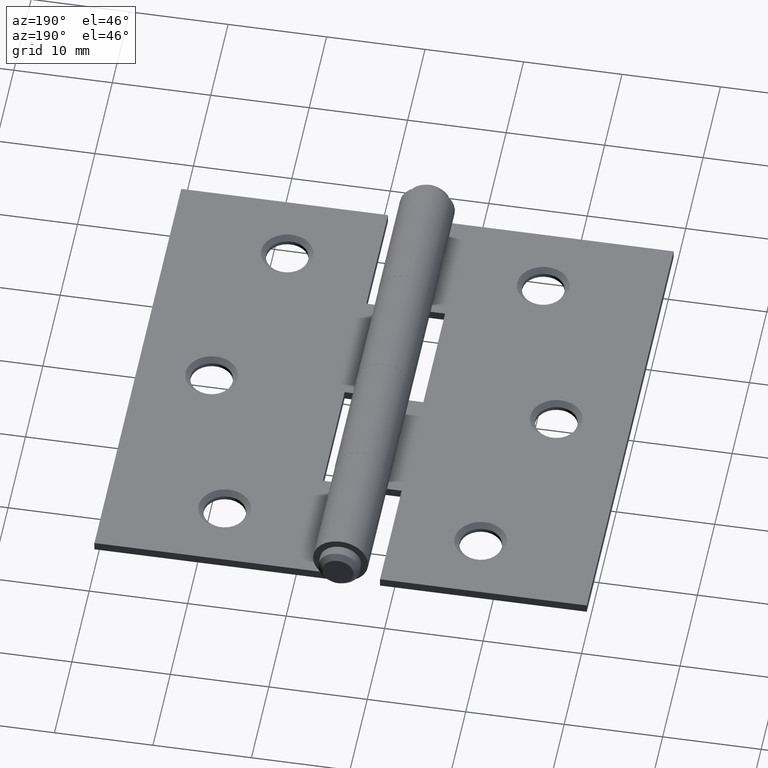
[diagram: clean part render]
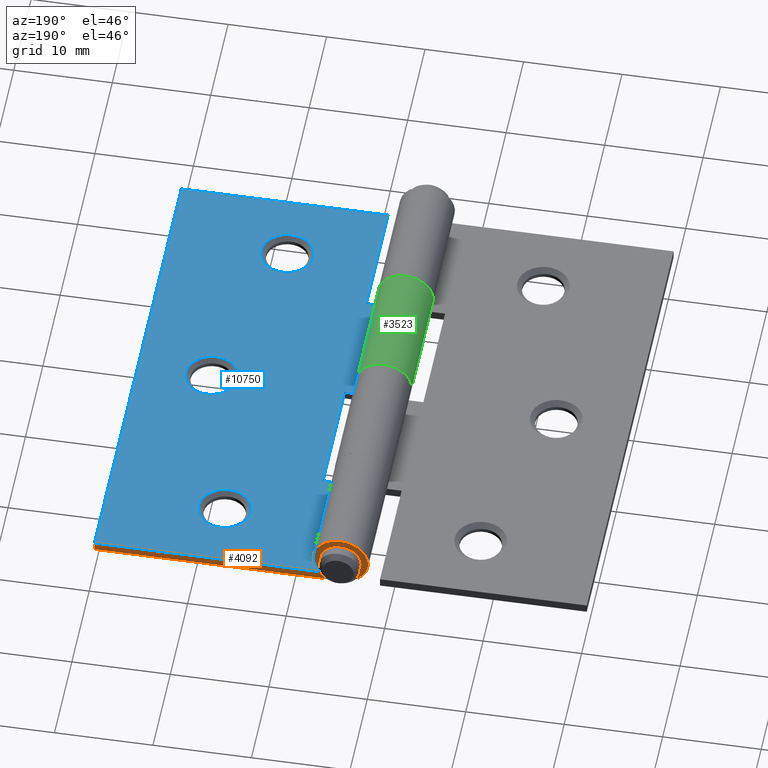
[diagram: same view with three faces highlighted in distinct colors, each labeled with its STEP entity id]
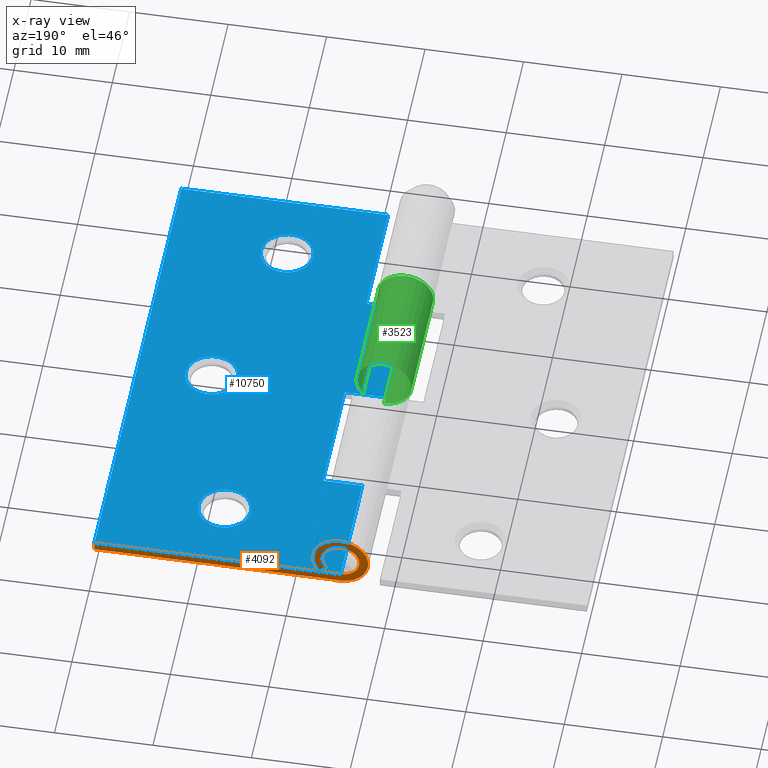
[diagram: x-ray of the same camera — body ghosted, the three highlighted faces saturated]
A machine part, auxiliary view with three faces highlighted in distinct colors.
The next image is the same camera in x-ray (body ghosted, the three faces saturated) — at least one of them is partly hidden behind the body in this view.
Their STEP definitions:

[orange] entity #4092 — the highlighted planar face has unit normal (0, 1, 0).
#344 = LINE ( 'NONE', #5999, #9733 ) ;
#432 = DIRECTION ( 'NONE',  ( 0.000000000000000000, -0.000000000000000000, -1.000000000000000000 ) ) ;
#448 = DIRECTION ( 'NONE',  ( 0.000000000000000000, 0.000000000000000000, -1.000000000000000000 ) ) ;
#461 = ORIENTED_EDGE ( 'NONE', *, *, #9180, .F. ) ;
#495 = LINE ( 'NONE', #9007, #7043 ) ;
#497 = PLANE ( 'NONE',  #11071 ) ;
#560 = EDGE_LOOP ( 'NONE', ( #461, #5979, #1026, #10837, #6148, #6451 ) ) ;
#574 = AXIS2_PLACEMENT_3D ( 'NONE', #8064, #4743, #448 ) ;
#853 = CARTESIAN_POINT ( 'NONE',  ( -2.800000000000000266, -25.00000000000000000, 0.9000000000000001332 ) ) ;
#1026 = ORIENTED_EDGE ( 'NONE', *, *, #6200, .F. ) ;
#1456 = FACE_OUTER_BOUND ( 'NONE', #560, .T. ) ;
#2128 = DIRECTION ( 'NONE',  ( 0.000000000000000000, -1.000000000000000000, 0.000000000000000000 ) ) ;
#2196 = LINE ( 'NONE', #5825, #8778 ) ;
#2266 = VECTOR ( 'NONE', #8711, 1000.000000000000000 ) ;
#2293 = CARTESIAN_POINT ( 'NONE',  ( -27.79999999999999716, -25.00000000000000000, 0.9000000000000029088 ) ) ;
#2703 = VERTEX_POINT ( 'NONE', #2293 ) ;
#3034 = CARTESIAN_POINT ( 'NONE',  ( -27.79999999999999716, -25.00000000000000000, 3.144186300207962859E-15 ) ) ;
#3346 = CARTESIAN_POINT ( 'NONE',  ( -2.800000000000000266, -25.00000000000000000, 0.000000000000000000 ) ) ;
#3571 = CARTESIAN_POINT ( 'NONE',  ( -2.799999999999999822, -25.00000000000000000, 2.800000000000000266 ) ) ;
#3646 = EDGE_CURVE ( 'NONE', #2703, #5708, #8583, .T. ) ;
#4092 = ADVANCED_FACE ( 'NONE', ( #1456 ), #497, .T. ) ;
#4103 = CIRCLE ( 'NONE', #5992, 1.899999999999999689 ) ;
#4421 = DIRECTION ( 'NONE',  ( 0.000000000000000000, 0.000000000000000000, -1.000000000000000000 ) ) ;
#4730 = DIRECTION ( 'NONE',  ( -0.000000000000000000, -0.000000000000000000, 1.000000000000000000 ) ) ;
#4743 = DIRECTION ( 'NONE',  ( 0.000000000000000000, 1.000000000000000000, -0.000000000000000000 ) ) ;
#4995 = CIRCLE ( 'NONE', #574, 2.799999999999999378 ) ;
#5708 = VERTEX_POINT ( 'NONE', #7821 ) ;
#5719 = VERTEX_POINT ( 'NONE', #8357 ) ;
#5825 = CARTESIAN_POINT ( 'NONE',  ( -4.944761058952719779, -25.00000000000000000, 0.9999999999999997780 ) ) ;
#5979 = ORIENTED_EDGE ( 'NONE', *, *, #7953, .F. ) ;
#5992 = AXIS2_PLACEMENT_3D ( 'NONE', #3571, #8832, #4421 ) ;
#5999 = CARTESIAN_POINT ( 'NONE',  ( -2.800000000000000266, -25.00000000000000000, 0.000000000000000000 ) ) ;
#6148 = ORIENTED_EDGE ( 'NONE', *, *, #6606, .F. ) ;
#6200 = EDGE_CURVE ( 'NONE', #5708, #8837, #4103, .T. ) ;
#6451 = ORIENTED_EDGE ( 'NONE', *, *, #8069, .F. ) ;
#6606 = EDGE_CURVE ( 'NONE', #9768, #2703, #495, .T. ) ;
#7043 = VECTOR ( 'NONE', #4730, 1000.000000000000000 ) ;
#7821 = CARTESIAN_POINT ( 'NONE',  ( -2.800000000000000266, -25.00000000000000000, 0.9000000000000001332 ) ) ;
#7953 = EDGE_CURVE ( 'NONE', #8837, #5719, #2196, .T. ) ;
#8064 = CARTESIAN_POINT ( 'NONE',  ( -2.799999999999999822, -25.00000000000000000, 2.800000000000000266 ) ) ;
#8069 = EDGE_CURVE ( 'NONE', #8144, #9768, #344, .T. ) ;
#8144 = VERTEX_POINT ( 'NONE', #3346 ) ;
#8260 = CARTESIAN_POINT ( 'NONE',  ( -4.255373575717917412, -25.00000000000000000, 1.578571428571428958 ) ) ;
#8357 = CARTESIAN_POINT ( 'NONE',  ( -4.944761058952719779, -25.00000000000000000, 0.9999999999999997780 ) ) ;
#8569 = DIRECTION ( 'NONE',  ( -1.000000000000000000, 0.000000000000000000, 1.257674520083185390E-16 ) ) ;
#8583 = LINE ( 'NONE', #853, #2266 ) ;
#8711 = DIRECTION ( 'NONE',  ( 1.000000000000000000, -0.000000000000000000, -1.127570259384924858E-16 ) ) ;
#8778 = VECTOR ( 'NONE', #10992, 1000.000000000000000 ) ;
#8832 = DIRECTION ( 'NONE',  ( -0.000000000000000000, -1.000000000000000000, 0.000000000000000000 ) ) ;
#8837 = VERTEX_POINT ( 'NONE', #8260 ) ;
#9007 = CARTESIAN_POINT ( 'NONE',  ( -27.79999999999999716, -25.00000000000000000, 0.9000000000000029088 ) ) ;
#9180 = EDGE_CURVE ( 'NONE', #5719, #8144, #4995, .T. ) ;
#9733 = VECTOR ( 'NONE', #8569, 1000.000000000000000 ) ;
#9768 = VERTEX_POINT ( 'NONE', #3034 ) ;
#10837 = ORIENTED_EDGE ( 'NONE', *, *, #3646, .F. ) ;
#10856 = CARTESIAN_POINT ( 'NONE',  ( -2.799999999999999822, -25.00000000000000000, 2.800000000000000266 ) ) ;
#10992 = DIRECTION ( 'NONE',  ( -0.7659860924831140006, -0.000000000000000000, -0.6428571428571439039 ) ) ;
#11071 = AXIS2_PLACEMENT_3D ( 'NONE', #10856, #2128, #432 ) ;

[blue] entity #10750 — the highlighted planar face has unit normal (-0, -0, -1).
#396 = ORIENTED_EDGE ( 'NONE', *, *, #10828, .F. ) ;
#431 = EDGE_CURVE ( 'NONE', #9718, #3584, #774, .T. ) ;
#582 = FACE_BOUND ( 'NONE', #2800, .T. ) ;
#746 = VECTOR ( 'NONE', #10382, 1000.000000000000000 ) ;
#772 = VECTOR ( 'NONE', #10529, 1000.000000000000000 ) ;
#774 = LINE ( 'NONE', #2490, #10178 ) ;
#793 = ORIENTED_EDGE ( 'NONE', *, *, #3776, .T. ) ;
#853 = CARTESIAN_POINT ( 'NONE',  ( -2.800000000000000266, -25.00000000000000000, 0.9000000000000001332 ) ) ;
#938 = DIRECTION ( 'NONE',  ( -1.127570259384924858E-16, 0.000000000000000000, -1.000000000000000000 ) ) ;
#1065 = EDGE_CURVE ( 'NONE', #8774, #3584, #8665, .T. ) ;
#1299 = LINE ( 'NONE', #4362, #1833 ) ;
#1351 = AXIS2_PLACEMENT_3D ( 'NONE', #4487, #7091, #7946 ) ;
#1362 = VECTOR ( 'NONE', #2585, 1000.000000000000000 ) ;
#1666 = CIRCLE ( 'NONE', #2052, 2.650000000000034106 ) ;
#1752 = CARTESIAN_POINT ( 'NONE',  ( -2.800000000000000266, 25.00000000000000000, 0.9000000000000001332 ) ) ;
#1782 = EDGE_LOOP ( 'NONE', ( #3689 ) ) ;
#1833 = VECTOR ( 'NONE', #10412, 1000.000000000000000 ) ;
#2052 = AXIS2_PLACEMENT_3D ( 'NONE', #3440, #9361, #5047 ) ;
#2266 = VECTOR ( 'NONE', #8711, 1000.000000000000000 ) ;
#2293 = CARTESIAN_POINT ( 'NONE',  ( -27.79999999999999716, -25.00000000000000000, 0.9000000000000029088 ) ) ;
#2433 = EDGE_CURVE ( 'NONE', #5642, #5642, #9680, .T. ) ;
#2450 = FACE_BOUND ( 'NONE', #6925, .T. ) ;
#2490 = CARTESIAN_POINT ( 'NONE',  ( -6.799999999999995381, 25.00000000000000000, 0.9000000000000004663 ) ) ;
#2585 = DIRECTION ( 'NONE',  ( -0.000000000000000000, -1.000000000000000000, -0.000000000000000000 ) ) ;
#2664 = ORIENTED_EDGE ( 'NONE', *, *, #4989, .T. ) ;
#2680 = ORIENTED_EDGE ( 'NONE', *, *, #8218, .T. ) ;
#2703 = VERTEX_POINT ( 'NONE', #2293 ) ;
#2751 = LINE ( 'NONE', #5503, #772 ) ;
#2800 = EDGE_LOOP ( 'NONE', ( #9933 ) ) ;
#2821 = LINE ( 'NONE', #8545, #1362 ) ;
#2910 = DIRECTION ( 'NONE',  ( 1.000000000000000000, -0.000000000000000000, -1.127570259384924858E-16 ) ) ;
#3133 = CARTESIAN_POINT ( 'NONE',  ( -2.800000000000000266, 12.50000000000000355, 0.9000000000000001332 ) ) ;
#3265 = LINE ( 'NONE', #5081, #746 ) ;
#3433 = PLANE ( 'NONE',  #10857 ) ;
#3440 = CARTESIAN_POINT ( 'NONE',  ( -20.30000000000000071, -3.469446951953614189E-15, 0.9000000000000020206 ) ) ;
#3584 = VERTEX_POINT ( 'NONE', #5859 ) ;
#3634 = DIRECTION ( 'NONE',  ( -1.127570259384924858E-16, 0.000000000000000000, -1.000000000000000000 ) ) ;
#3646 = EDGE_CURVE ( 'NONE', #2703, #5708, #8583, .T. ) ;
#3689 = ORIENTED_EDGE ( 'NONE', *, *, #8476, .T. ) ;
#3748 = VERTEX_POINT ( 'NONE', #6974 ) ;
#3776 = EDGE_CURVE ( 'NONE', #8454, #7445, #7363, .T. ) ;
#3781 = EDGE_LOOP ( 'NONE', ( #6924, #793, #9779, #10946, #8715, #10731, #4390, #8804, #396, #2664 ) ) ;
#3795 = LINE ( 'NONE', #7065, #4448 ) ;
#4161 = CARTESIAN_POINT ( 'NONE',  ( -6.799999999999995381, 3.469446951953614189E-15, 0.9000000000000005773 ) ) ;
#4237 = CARTESIAN_POINT ( 'NONE',  ( -22.95000000000003482, -3.469446951953614189E-15, 0.9000000000000023537 ) ) ;
#4301 = FACE_BOUND ( 'NONE', #1782, .T. ) ;
#4315 = CARTESIAN_POINT ( 'NONE',  ( -2.800000000000000266, 3.469446951953614189E-15, 0.9000000000000005773 ) ) ;
#4362 = CARTESIAN_POINT ( 'NONE',  ( -2.799999999999989608, -12.49999999999999645, 0.9000000000000001332 ) ) ;
#4390 = ORIENTED_EDGE ( 'NONE', *, *, #8632, .T. ) ;
#4448 = VECTOR ( 'NONE', #7140, 1000.000000000000000 ) ;
#4477 = CARTESIAN_POINT ( 'NONE',  ( -15.80000000000000426, 17.99999999999999645, 0.9000000000000015765 ) ) ;
#4487 = CARTESIAN_POINT ( 'NONE',  ( -15.80000000000000071, -18.00000000000000355, 0.9000000000000015765 ) ) ;
#4989 = EDGE_CURVE ( 'NONE', #11116, #9754, #1299, .T. ) ;
#5027 = DIRECTION ( 'NONE',  ( 0.000000000000000000, 1.000000000000000000, 0.000000000000000000 ) ) ;
#5047 = DIRECTION ( 'NONE',  ( -1.000000000000000000, 0.000000000000000000, 1.227398685832630780E-16 ) ) ;
#5081 = CARTESIAN_POINT ( 'NONE',  ( -2.800000000000000266, 25.00000000000000000, 0.9000000000000001332 ) ) ;
#5134 = AXIS2_PLACEMENT_3D ( 'NONE', #4477, #3634, #10603 ) ;
#5503 = CARTESIAN_POINT ( 'NONE',  ( -6.799999999999995381, 25.00000000000000000, 0.9000000000000004663 ) ) ;
#5642 = VERTEX_POINT ( 'NONE', #10251 ) ;
#5708 = VERTEX_POINT ( 'NONE', #7821 ) ;
#5729 = CARTESIAN_POINT ( 'NONE',  ( -6.799999999999995381, 12.50000000000000355, 0.9000000000000005773 ) ) ;
#5828 = CARTESIAN_POINT ( 'NONE',  ( -18.45000000000003837, 17.99999999999999645, 0.9000000000000019096 ) ) ;
#5838 = VECTOR ( 'NONE', #10784, 1000.000000000000000 ) ;
#5859 = CARTESIAN_POINT ( 'NONE',  ( -6.799999999999995381, 25.00000000000000000, 0.9000000000000014655 ) ) ;
#5965 = CARTESIAN_POINT ( 'NONE',  ( -2.800000000000000266, -12.49999999999999645, 0.9000000000000005773 ) ) ;
#6138 = DIRECTION ( 'NONE',  ( 1.000000000000000000, -0.000000000000000000, -1.127570259384924858E-16 ) ) ;
#6194 = FACE_OUTER_BOUND ( 'NONE', #3781, .T. ) ;
#6581 = EDGE_CURVE ( 'NONE', #9754, #8454, #2751, .T. ) ;
#6647 = EDGE_CURVE ( 'NONE', #3748, #9718, #10432, .T. ) ;
#6924 = ORIENTED_EDGE ( 'NONE', *, *, #6581, .T. ) ;
#6925 = EDGE_LOOP ( 'NONE', ( #2680 ) ) ;
#6974 = CARTESIAN_POINT ( 'NONE',  ( -2.799999999999999822, 12.50000000000000355, 0.9000000000000005773 ) ) ;
#7034 = VECTOR ( 'NONE', #6138, 1000.000000000000000 ) ;
#7065 = CARTESIAN_POINT ( 'NONE',  ( -27.79999999999999716, 25.00000000000000000, 0.9000000000000029088 ) ) ;
#7089 = VECTOR ( 'NONE', #2910, 1000.000000000000000 ) ;
#7091 = DIRECTION ( 'NONE',  ( -1.127570259384924858E-16, 0.000000000000000000, -1.000000000000000000 ) ) ;
#7140 = DIRECTION ( 'NONE',  ( -0.000000000000000000, -1.000000000000000000, -0.000000000000000000 ) ) ;
#7290 = CIRCLE ( 'NONE', #5134, 2.650000000000034106 ) ;
#7363 = LINE ( 'NONE', #10637, #7089 ) ;
#7390 = VERTEX_POINT ( 'NONE', #5828 ) ;
#7445 = VERTEX_POINT ( 'NONE', #4315 ) ;
#7542 = VERTEX_POINT ( 'NONE', #4237 ) ;
#7608 = CARTESIAN_POINT ( 'NONE',  ( -6.799999999999995381, -12.49999999999999822, 0.9000000000000005773 ) ) ;
#7821 = CARTESIAN_POINT ( 'NONE',  ( -2.800000000000000266, -25.00000000000000000, 0.9000000000000001332 ) ) ;
#7946 = DIRECTION ( 'NONE',  ( -1.000000000000000000, 0.000000000000000000, 1.227398685832630780E-16 ) ) ;
#8218 = EDGE_CURVE ( 'NONE', #7390, #7390, #7290, .T. ) ;
#8454 = VERTEX_POINT ( 'NONE', #4161 ) ;
#8476 = EDGE_CURVE ( 'NONE', #7542, #7542, #1666, .T. ) ;
#8528 = EDGE_CURVE ( 'NONE', #3748, #7445, #3265, .T. ) ;
#8545 = CARTESIAN_POINT ( 'NONE',  ( -2.800000000000000266, 25.00000000000000000, 0.9000000000000001332 ) ) ;
#8583 = LINE ( 'NONE', #853, #2266 ) ;
#8632 = EDGE_CURVE ( 'NONE', #8774, #2703, #3795, .T. ) ;
#8665 = LINE ( 'NONE', #9502, #7034 ) ;
#8711 = DIRECTION ( 'NONE',  ( 1.000000000000000000, -0.000000000000000000, -1.127570259384924858E-16 ) ) ;
#8715 = ORIENTED_EDGE ( 'NONE', *, *, #431, .T. ) ;
#8774 = VERTEX_POINT ( 'NONE', #10017 ) ;
#8804 = ORIENTED_EDGE ( 'NONE', *, *, #3646, .T. ) ;
#9361 = DIRECTION ( 'NONE',  ( -1.127570259384924858E-16, 0.000000000000000000, -1.000000000000000000 ) ) ;
#9502 = CARTESIAN_POINT ( 'NONE',  ( -2.800000000000000266, 25.00000000000000000, 0.9000000000000001332 ) ) ;
#9680 = CIRCLE ( 'NONE', #1351, 2.650000000000034106 ) ;
#9718 = VERTEX_POINT ( 'NONE', #5729 ) ;
#9754 = VERTEX_POINT ( 'NONE', #7608 ) ;
#9779 = ORIENTED_EDGE ( 'NONE', *, *, #8528, .F. ) ;
#9933 = ORIENTED_EDGE ( 'NONE', *, *, #2433, .T. ) ;
#10017 = CARTESIAN_POINT ( 'NONE',  ( -27.79999999999999716, 25.00000000000000000, 0.9000000000000029088 ) ) ;
#10178 = VECTOR ( 'NONE', #5027, 1000.000000000000000 ) ;
#10251 = CARTESIAN_POINT ( 'NONE',  ( -18.45000000000003482, -18.00000000000000355, 0.9000000000000019096 ) ) ;
#10294 = DIRECTION ( 'NONE',  ( -1.000000000000000000, 0.000000000000000000, 1.127570259384924858E-16 ) ) ;
#10382 = DIRECTION ( 'NONE',  ( -0.000000000000000000, -1.000000000000000000, -0.000000000000000000 ) ) ;
#10412 = DIRECTION ( 'NONE',  ( -1.000000000000000000, -2.940209281316622002E-16, 1.127570259384924858E-16 ) ) ;
#10432 = LINE ( 'NONE', #3133, #5838 ) ;
#10529 = DIRECTION ( 'NONE',  ( 0.000000000000000000, 1.000000000000000000, 0.000000000000000000 ) ) ;
#10603 = DIRECTION ( 'NONE',  ( -1.000000000000000000, 0.000000000000000000, 1.227398685832630780E-16 ) ) ;
#10637 = CARTESIAN_POINT ( 'NONE',  ( -2.800000000000000266, 3.469446951953614189E-15, 0.9000000000000001332 ) ) ;
#10731 = ORIENTED_EDGE ( 'NONE', *, *, #1065, .F. ) ;
#10750 = ADVANCED_FACE ( 'NONE', ( #4301, #582, #2450, #6194 ), #3433, .F. ) ;
#10784 = DIRECTION ( 'NONE',  ( -1.000000000000000000, 0.000000000000000000, 1.127570259384924858E-16 ) ) ;
#10828 = EDGE_CURVE ( 'NONE', #11116, #5708, #2821, .T. ) ;
#10857 = AXIS2_PLACEMENT_3D ( 'NONE', #1752, #938, #10294 ) ;
#10946 = ORIENTED_EDGE ( 'NONE', *, *, #6647, .T. ) ;
#11116 = VERTEX_POINT ( 'NONE', #5965 ) ;

[green] entity #3523 — the highlighted cylindrical surface (edge-blend (fillet) strip) has radius 2.8 mm, axis along (0, 1, -0).
#33 = CARTESIAN_POINT ( 'NONE',  ( -2.799999999999999822, 12.50000000000000355, 2.800000000000000266 ) ) ;
#140 = CARTESIAN_POINT ( 'NONE',  ( -2.800000000000000266, 12.50000000000000355, 3.642919299551296377E-16 ) ) ;
#153 = VERTEX_POINT ( 'NONE', #6952 ) ;
#174 = VECTOR ( 'NONE', #9978, 1000.000000000000000 ) ;
#281 = VERTEX_POINT ( 'NONE', #3719 ) ;
#694 = CARTESIAN_POINT ( 'NONE',  ( -2.800000000000000266, 3.469446951953614189E-15, 3.642919299551296377E-16 ) ) ;
#978 = EDGE_CURVE ( 'NONE', #10355, #153, #9886, .T. ) ;
#1513 = DIRECTION ( 'NONE',  ( 0.000000000000000000, 1.000000000000000000, -0.000000000000000000 ) ) ;
#1631 = ORIENTED_EDGE ( 'NONE', *, *, #978, .T. ) ;
#1733 = CYLINDRICAL_SURFACE ( 'NONE', #4489, 2.799999999999999378 ) ;
#1852 = EDGE_CURVE ( 'NONE', #10355, #10659, #6700, .T. ) ;
#1952 = CIRCLE ( 'NONE', #9541, 2.799999999999999378 ) ;
#1986 = FACE_OUTER_BOUND ( 'NONE', #4267, .T. ) ;
#1998 = VECTOR ( 'NONE', #5444, 1000.000000000000000 ) ;
#2473 = CARTESIAN_POINT ( 'NONE',  ( -2.799999999999999822, 3.469446951953614189E-15, 2.800000000000000266 ) ) ;
#3523 = ADVANCED_FACE ( 'NONE', ( #1986 ), #1733, .T. ) ;
#3719 = CARTESIAN_POINT ( 'NONE',  ( -4.944761058952719779, 3.469446951953614189E-15, 1.000000000000000000 ) ) ;
#3757 = CARTESIAN_POINT ( 'NONE',  ( -2.800000000000000266, 25.00000000000000000, 0.000000000000000000 ) ) ;
#3944 = CARTESIAN_POINT ( 'NONE',  ( -4.944761058952719779, 25.00000000000000000, 0.9999999999999997780 ) ) ;
#4059 = ORIENTED_EDGE ( 'NONE', *, *, #10985, .T. ) ;
#4267 = EDGE_LOOP ( 'NONE', ( #8273, #7219, #1631, #4059 ) ) ;
#4489 = AXIS2_PLACEMENT_3D ( 'NONE', #4956, #10046, #5749 ) ;
#4687 = LINE ( 'NONE', #3944, #174 ) ;
#4956 = CARTESIAN_POINT ( 'NONE',  ( -2.799999999999999822, 25.00000000000000000, 2.800000000000000266 ) ) ;
#5444 = DIRECTION ( 'NONE',  ( -0.000000000000000000, -1.000000000000000000, -0.000000000000000000 ) ) ;
#5749 = DIRECTION ( 'NONE',  ( 0.000000000000000000, 0.000000000000000000, -1.000000000000000000 ) ) ;
#5803 = EDGE_CURVE ( 'NONE', #281, #10659, #1952, .T. ) ;
#6700 = LINE ( 'NONE', #3757, #1998 ) ;
#6952 = CARTESIAN_POINT ( 'NONE',  ( -4.944761058952719779, 12.50000000000000355, 1.000000000000000000 ) ) ;
#7219 = ORIENTED_EDGE ( 'NONE', *, *, #1852, .F. ) ;
#7498 = DIRECTION ( 'NONE',  ( 0.000000000000000000, 0.000000000000000000, 1.000000000000000000 ) ) ;
#8273 = ORIENTED_EDGE ( 'NONE', *, *, #5803, .T. ) ;
#9541 = AXIS2_PLACEMENT_3D ( 'NONE', #2473, #1513, #7498 ) ;
#9886 = CIRCLE ( 'NONE', #10565, 2.799999999999999378 ) ;
#9978 = DIRECTION ( 'NONE',  ( -0.000000000000000000, -1.000000000000000000, -0.000000000000000000 ) ) ;
#10046 = DIRECTION ( 'NONE',  ( -0.000000000000000000, -1.000000000000000000, -0.000000000000000000 ) ) ;
#10304 = DIRECTION ( 'NONE',  ( 0.000000000000000000, -1.000000000000000000, 0.000000000000000000 ) ) ;
#10355 = VERTEX_POINT ( 'NONE', #140 ) ;
#10565 = AXIS2_PLACEMENT_3D ( 'NONE', #33, #10304, #11063 ) ;
#10659 = VERTEX_POINT ( 'NONE', #694 ) ;
#10985 = EDGE_CURVE ( 'NONE', #153, #281, #4687, .T. ) ;
#11063 = DIRECTION ( 'NONE',  ( 0.000000000000000000, 0.000000000000000000, -1.000000000000000000 ) ) ;